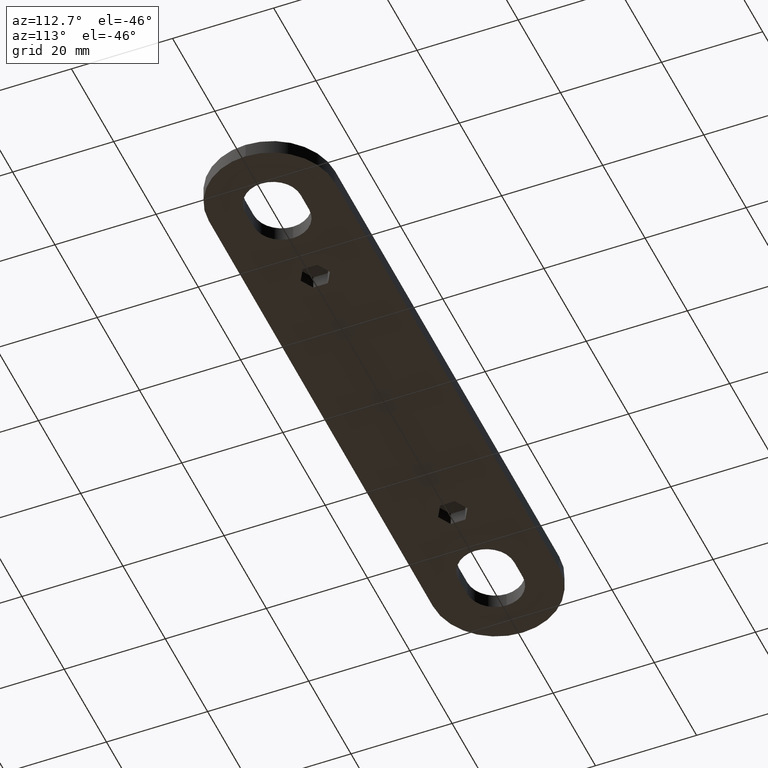
[diagram: clean part render]
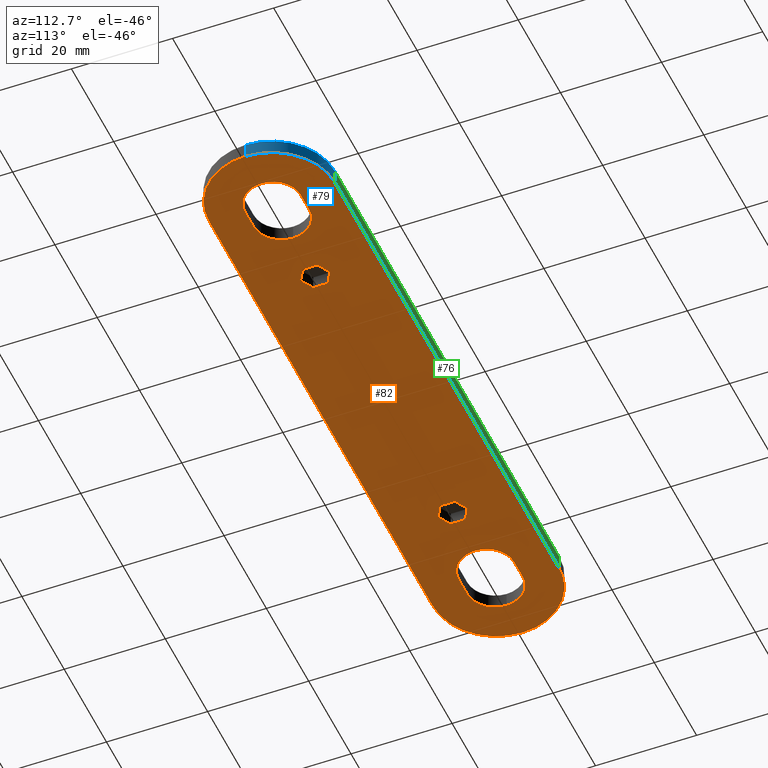
[diagram: same view with three faces highlighted in distinct colors, each labeled with its STEP entity id]
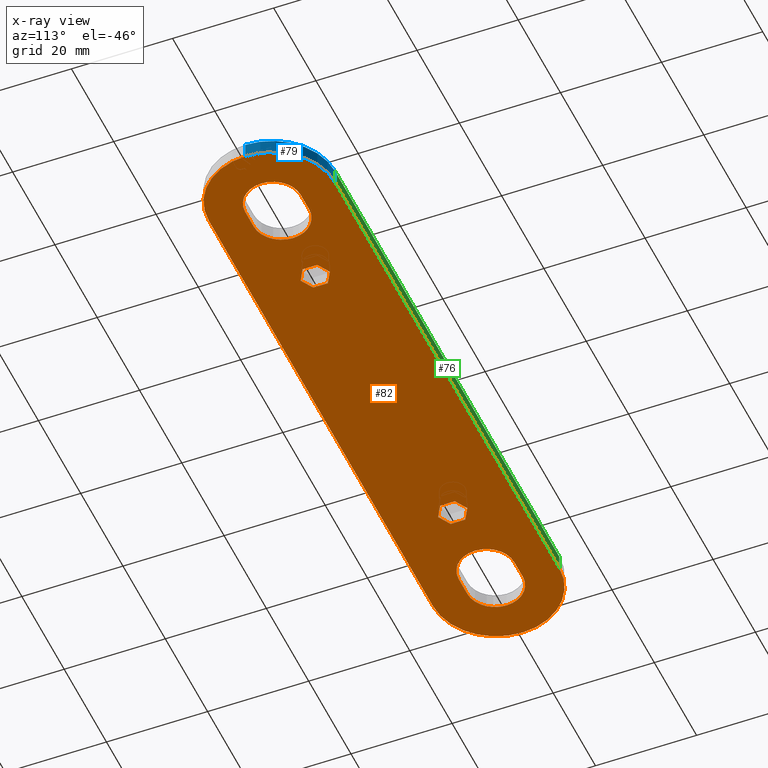
[diagram: x-ray of the same camera — body ghosted, the three highlighted faces saturated]
A machine part, auxiliary view with three faces highlighted in distinct colors.
The next image is the same camera in x-ray (body ghosted, the three faces saturated) — at least one of them is partly hidden behind the body in this view.
Their STEP definitions:

[orange] entity #82 — the highlighted planar face has unit normal (0, -0, -1).
#82 = ADVANCED_FACE( '', ( #170, #171, #172, #173, #174 ), #175, .T. );
#170 = FACE_BOUND( '', #327, .T. );
#171 = FACE_BOUND( '', #328, .T. );
#172 = FACE_BOUND( '', #329, .T. );
#173 = FACE_OUTER_BOUND( '', #330, .T. );
#174 = FACE_BOUND( '', #331, .T. );
#175 = PLANE( '', #332 );
#327 = EDGE_LOOP( '', ( #554, #555, #556, #557, #558, #559 ) );
#328 = EDGE_LOOP( '', ( #560, #561, #562, #563, #564, #565 ) );
#329 = EDGE_LOOP( '', ( #566, #567, #568, #569, #570, #571 ) );
#330 = EDGE_LOOP( '', ( #572, #573, #574, #575, #576, #577 ) );
#331 = EDGE_LOOP( '', ( #578, #579, #580, #581, #582, #583 ) );
#332 = AXIS2_PLACEMENT_3D( '', #584, #585, #586 );
#554 = ORIENTED_EDGE( '', *, *, #1092, .F. );
#555 = ORIENTED_EDGE( '', *, *, #1093, .F. );
#556 = ORIENTED_EDGE( '', *, *, #1094, .F. );
#557 = ORIENTED_EDGE( '', *, *, #1095, .F. );
#558 = ORIENTED_EDGE( '', *, *, #1096, .F. );
#559 = ORIENTED_EDGE( '', *, *, #1097, .F. );
#560 = ORIENTED_EDGE( '', *, *, #1098, .F. );
#561 = ORIENTED_EDGE( '', *, *, #1099, .F. );
#562 = ORIENTED_EDGE( '', *, *, #1100, .F. );
#563 = ORIENTED_EDGE( '', *, *, #1101, .F. );
#564 = ORIENTED_EDGE( '', *, *, #1102, .F. );
#565 = ORIENTED_EDGE( '', *, *, #1103, .F. );
#566 = ORIENTED_EDGE( '', *, *, #1104, .T. );
#567 = ORIENTED_EDGE( '', *, *, #1105, .T. );
#568 = ORIENTED_EDGE( '', *, *, #1106, .T. );
#569 = ORIENTED_EDGE( '', *, *, #1107, .T. );
#570 = ORIENTED_EDGE( '', *, *, #1108, .T. );
#571 = ORIENTED_EDGE( '', *, *, #1109, .T. );
#572 = ORIENTED_EDGE( '', *, *, #1079, .T. );
#573 = ORIENTED_EDGE( '', *, *, #1087, .T. );
#574 = ORIENTED_EDGE( '', *, *, #1089, .T. );
#575 = ORIENTED_EDGE( '', *, *, #1091, .T. );
#576 = ORIENTED_EDGE( '', *, *, #1110, .T. );
#577 = ORIENTED_EDGE( '', *, *, #1111, .T. );
#578 = ORIENTED_EDGE( '', *, *, #1112, .T. );
#579 = ORIENTED_EDGE( '', *, *, #1113, .T. );
#580 = ORIENTED_EDGE( '', *, *, #1114, .T. );
#581 = ORIENTED_EDGE( '', *, *, #1115, .T. );
#582 = ORIENTED_EDGE( '', *, *, #1116, .T. );
#583 = ORIENTED_EDGE( '', *, *, #1117, .T. );
#584 = CARTESIAN_POINT( '', ( 53.0000000000000, -8.49741356322415E-031, -1.38777878078145E-014 ) );
#585 = DIRECTION( '', ( 0.000000000000000, -6.12303176911189E-017, -1.00000000000000 ) );
#586 = DIRECTION( '', ( 6.12303176911189E-017, 1.00000000000000, -6.12303176911189E-017 ) );
#1079 = EDGE_CURVE( '', #1306, #1304, #1307, .T. );
#1087 = EDGE_CURVE( '', #1304, #1317, #1319, .T. );
#1089 = EDGE_CURVE( '', #1317, #1320, #1322, .T. );
#1091 = EDGE_CURVE( '', #1320, #1323, #1325, .T. );
#1092 = EDGE_CURVE( '', #1326, #1327, #1328, .T. );
#1093 = EDGE_CURVE( '', #1329, #1326, #1330, .T. );
#1094 = EDGE_CURVE( '', #1331, #1329, #1332, .T. );
#1095 = EDGE_CURVE( '', #1333, #1331, #1334, .T. );
#1096 = EDGE_CURVE( '', #1335, #1333, #1336, .T. );
#1097 = EDGE_CURVE( '', #1327, #1335, #1337, .T. );
#1098 = EDGE_CURVE( '', #1338, #1339, #1340, .T. );
#1099 = EDGE_CURVE( '', #1341, #1338, #1342, .T. );
#1100 = EDGE_CURVE( '', #1343, #1341, #1344, .T. );
#1101 = EDGE_CURVE( '', #1345, #1343, #1346, .T. );
#1102 = EDGE_CURVE( '', #1347, #1345, #1348, .T. );
#1103 = EDGE_CURVE( '', #1339, #1347, #1349, .T. );
#1104 = EDGE_CURVE( '', #1350, #1351, #1352, .T. );
#1105 = EDGE_CURVE( '', #1351, #1353, #1354, .T. );
#1106 = EDGE_CURVE( '', #1353, #1355, #1356, .T. );
#1107 = EDGE_CURVE( '', #1355, #1357, #1358, .T. );
#1108 = EDGE_CURVE( '', #1357, #1359, #1360, .T. );
#1109 = EDGE_CURVE( '', #1359, #1350, #1361, .T. );
#1110 = EDGE_CURVE( '', #1323, #1362, #1363, .T. );
#1111 = EDGE_CURVE( '', #1362, #1306, #1364, .T. );
#1112 = EDGE_CURVE( '', #1365, #1366, #1367, .T. );
#1113 = EDGE_CURVE( '', #1366, #1368, #1369, .T. );
#1114 = EDGE_CURVE( '', #1368, #1370, #1371, .T. );
#1115 = EDGE_CURVE( '', #1370, #1372, #1373, .T. );
#1116 = EDGE_CURVE( '', #1372, #1374, #1375, .T. );
#1117 = EDGE_CURVE( '', #1374, #1365, #1376, .T. );
#1304 = VERTEX_POINT( '', #1634 );
#1306 = VERTEX_POINT( '', #1637 );
#1307 = LINE( '', #1638, #1639 );
#1317 = VERTEX_POINT( '', #1655 );
#1319 = CIRCLE( '', #1658, 12.5000000000000 );
#1320 = VERTEX_POINT( '', #1659 );
#1322 = CIRCLE( '', #1662, 12.5000000000000 );
#1323 = VERTEX_POINT( '', #1663 );
#1325 = LINE( '', #1666, #1667 );
#1326 = VERTEX_POINT( '', #1668 );
#1327 = VERTEX_POINT( '', #1669 );
#1328 = LINE( '', #1670, #1671 );
#1329 = VERTEX_POINT( '', #1672 );
#1330 = LINE( '', #1673, #1674 );
#1331 = VERTEX_POINT( '', #1675 );
#1332 = LINE( '', #1676, #1677 );
#1333 = VERTEX_POINT( '', #1678 );
#1334 = LINE( '', #1679, #1680 );
#1335 = VERTEX_POINT( '', #1681 );
#1336 = LINE( '', #1682, #1683 );
#1337 = LINE( '', #1684, #1685 );
#1338 = VERTEX_POINT( '', #1686 );
#1339 = VERTEX_POINT( '', #1687 );
#1340 = LINE( '', #1688, #1689 );
#1341 = VERTEX_POINT( '', #1690 );
#1342 = LINE( '', #1691, #1692 );
#1343 = VERTEX_POINT( '', #1693 );
#1344 = LINE( '', #1694, #1695 );
#1345 = VERTEX_POINT( '', #1696 );
#1346 = LINE( '', #1697, #1698 );
#1347 = VERTEX_POINT( '', #1699 );
#1348 = LINE( '', #1700, #1701 );
#1349 = LINE( '', #1702, #1703 );
#1350 = VERTEX_POINT( '', #1704 );
#1351 = VERTEX_POINT( '', #1705 );
#1352 = CIRCLE( '', #1706, 5.50000000000000 );
#1353 = VERTEX_POINT( '', #1707 );
#1354 = LINE( '', #1708, #1709 );
#1355 = VERTEX_POINT( '', #1710 );
#1356 = CIRCLE( '', #1711, 5.50000000000001 );
#1357 = VERTEX_POINT( '', #1712 );
#1358 = CIRCLE( '', #1713, 5.50000000000000 );
#1359 = VERTEX_POINT( '', #1714 );
#1360 = LINE( '', #1715, #1716 );
#1361 = CIRCLE( '', #1717, 5.50000000000000 );
#1362 = VERTEX_POINT( '', #1718 );
#1363 = CIRCLE( '', #1719, 12.5000000000000 );
#1364 = CIRCLE( '', #1720, 12.5000000000000 );
#1365 = VERTEX_POINT( '', #1721 );
#1366 = VERTEX_POINT( '', #1722 );
#1367 = CIRCLE( '', #1723, 5.50000000000000 );
#1368 = VERTEX_POINT( '', #1724 );
#1369 = LINE( '', #1725, #1726 );
#1370 = VERTEX_POINT( '', #1727 );
#1371 = CIRCLE( '', #1728, 5.50000000000001 );
#1372 = VERTEX_POINT( '', #1729 );
#1373 = CIRCLE( '', #1730, 5.50000000000000 );
#1374 = VERTEX_POINT( '', #1731 );
#1375 = LINE( '', #1732, #1733 );
#1376 = CIRCLE( '', #1734, 5.50000000000000 );
#1634 = CARTESIAN_POINT( '', ( 53.0000000000000, 12.5000000000000, -1.46431667789534E-014 ) );
#1637 = CARTESIAN_POINT( '', ( -53.0000000000000, 12.5000000000000, -1.46431667789534E-014 ) );
#1638 = CARTESIAN_POINT( '', ( -53.0000000000000, 12.5000000000000, -1.46431667789534E-014 ) );
#1639 = VECTOR( '', #2031, 1000.00000000000 );
#1655 = CARTESIAN_POINT( '', ( 65.5000000000000, -8.49741356322415E-031, -1.38777878078145E-014 ) );
#1658 = AXIS2_PLACEMENT_3D( '', #2039, #2040, #2041 );
#1659 = CARTESIAN_POINT( '', ( 53.0000000000000, -12.5000000000000, -1.31124088366755E-014 ) );
#1662 = AXIS2_PLACEMENT_3D( '', #2043, #2044, #2045 );
#1663 = CARTESIAN_POINT( '', ( -53.0000000000000, -12.5000000000000, -1.31124088366755E-014 ) );
#1666 = CARTESIAN_POINT( '', ( 53.0000000000000, -12.5000000000000, -1.31124088366755E-014 ) );
#1667 = VECTOR( '', #2047, 1000.00000000000 );
#1668 = CARTESIAN_POINT( '', ( 32.5000000000000, 2.88675134594813, -1.40545445098221E-014 ) );
#1669 = CARTESIAN_POINT( '', ( 35.0000000000000, 1.44337567297408, -1.39661661588183E-014 ) );
#1670 = CARTESIAN_POINT( '', ( -13.7500000000000, 29.5892012959683, -1.56895440033931E-014 ) );
#1671 = VECTOR( '', #2048, 1000.00000000000 );
#1672 = CARTESIAN_POINT( '', ( 30.0000000000000, 1.44337567297406, -1.39661661588183E-014 ) );
#1673 = CARTESIAN_POINT( '', ( -15.0000000000000, -24.5373864405591, -1.23753558407493E-014 ) );
#1674 = VECTOR( '', #2049, 1000.00000000000 );
#1675 = CARTESIAN_POINT( '', ( 30.0000000000000, -1.44337567297407, -1.37894094568106E-014 ) );
#1676 = CARTESIAN_POINT( '', ( 30.0000000000000, 1.44337567297407, -1.39661661588183E-014 ) );
#1677 = VECTOR( '', #2050, 1000.00000000000 );
#1678 = CARTESIAN_POINT( '', ( 32.5000000000000, -2.88675134594813, -1.37010311058068E-014 ) );
#1679 = CARTESIAN_POINT( '', ( -16.2500000000000, 25.2590742770461, -1.54244089503816E-014 ) );
#1680 = VECTOR( '', #2051, 1000.00000000000 );
#1681 = CARTESIAN_POINT( '', ( 35.0000000000000, -1.44337567297406, -1.37894094568106E-014 ) );
#1682 = CARTESIAN_POINT( '', ( -12.5000000000000, -28.8675134594813, -1.21102207877378E-014 ) );
#1683 = VECTOR( '', #2052, 1000.00000000000 );
#1684 = CARTESIAN_POINT( '', ( 35.0000000000000, 1.44337567297411, -1.39661661588183E-014 ) );
#1685 = VECTOR( '', #2053, 1000.00000000000 );
#1686 = CARTESIAN_POINT( '', ( -32.5000000000000, 2.88675134594813, -1.40545445098221E-014 ) );
#1687 = CARTESIAN_POINT( '', ( -30.0000000000000, 1.44337567297407, -1.39661661588183E-014 ) );
#1688 = CARTESIAN_POINT( '', ( -30.0000000000000, 1.44337567297407, -1.39661661588183E-014 ) );
#1689 = VECTOR( '', #2054, 1000.00000000000 );
#1690 = CARTESIAN_POINT( '', ( -35.0000000000000, 1.44337567297406, -1.39661661588183E-014 ) );
#1691 = CARTESIAN_POINT( '', ( -31.2500000000000, 3.60843918243516, -1.40987336853240E-014 ) );
#1692 = VECTOR( '', #2055, 1000.00000000000 );
#1693 = CARTESIAN_POINT( '', ( -35.0000000000000, -1.44337567297407, -1.37894094568106E-014 ) );
#1694 = CARTESIAN_POINT( '', ( -35.0000000000000, 1.44337567297407, -1.39661661588183E-014 ) );
#1695 = VECTOR( '', #2056, 1000.00000000000 );
#1696 = CARTESIAN_POINT( '', ( -32.5000000000000, -2.88675134594813, -1.37010311058068E-014 ) );
#1697 = CARTESIAN_POINT( '', ( -32.5000000000000, -2.88675134594813, -1.37010311058068E-014 ) );
#1698 = VECTOR( '', #2057, 1000.00000000000 );
#1699 = CARTESIAN_POINT( '', ( -30.0000000000000, -1.44337567297406, -1.37894094568106E-014 ) );
#1700 = CARTESIAN_POINT( '', ( -28.7500000000000, -0.721687836487026, -1.38335986323125E-014 ) );
#1701 = VECTOR( '', #2058, 1000.00000000000 );
#1702 = CARTESIAN_POINT( '', ( -30.0000000000000, 1.44337567297407, -1.39661661588183E-014 ) );
#1703 = VECTOR( '', #2059, 1000.00000000000 );
#1704 = CARTESIAN_POINT( '', ( -43.0000000000000, -2.60208582626839E-015, -1.00000000086142E-005 ) );
#1705 = CARTESIAN_POINT( '', ( -48.5000000000000, 5.50000000000000, -1.00000000089510E-005 ) );
#1706 = AXIS2_PLACEMENT_3D( '', #2060, #2061, #2062 );
#1707 = CARTESIAN_POINT( '', ( -52.5000000000000, 5.50000000000000, -1.00000000089510E-005 ) );
#1708 = CARTESIAN_POINT( '', ( -48.5000000000000, 5.50000000000000, -1.00000000089510E-005 ) );
#1709 = VECTOR( '', #2063, 1000.00000000000 );
#1710 = CARTESIAN_POINT( '', ( -58.0000000000000, -5.20417104023360E-015, -1.00000000086142E-005 ) );
#1711 = AXIS2_PLACEMENT_3D( '', #2064, #2065, #2066 );
#1712 = CARTESIAN_POINT( '', ( -52.5000000000000, -5.50000000000001, -1.00000000082775E-005 ) );
#1713 = AXIS2_PLACEMENT_3D( '', #2067, #2068, #2069 );
#1714 = CARTESIAN_POINT( '', ( -48.5000000000000, -5.50000000000001, -1.00000000082775E-005 ) );
#1715 = CARTESIAN_POINT( '', ( -52.5000000000000, -5.50000000000001, -1.00000000082775E-005 ) );
#1716 = VECTOR( '', #2070, 1000.00000000000 );
#1717 = AXIS2_PLACEMENT_3D( '', #2071, #2072, #2073 );
#1718 = CARTESIAN_POINT( '', ( -65.5000000000000, -1.73472347597681E-015, -1.38777878078145E-014 ) );
#1719 = AXIS2_PLACEMENT_3D( '', #2074, #2075, #2076 );
#1720 = AXIS2_PLACEMENT_3D( '', #2077, #2078, #2079 );
#1721 = CARTESIAN_POINT( '', ( 58.0000000000000, 3.46944633965044E-015, -1.00000000086142E-005 ) );
#1722 = CARTESIAN_POINT( '', ( 52.5000000000000, 5.50000000000000, -1.00000000089510E-005 ) );
#1723 = AXIS2_PLACEMENT_3D( '', #2080, #2081, #2082 );
#1724 = CARTESIAN_POINT( '', ( 48.5000000000000, 5.50000000000001, -1.00000000089510E-005 ) );
#1725 = CARTESIAN_POINT( '', ( 52.5000000000000, 5.50000000000000, -1.00000000089510E-005 ) );
#1726 = VECTOR( '', #2083, 1000.00000000000 );
#1727 = CARTESIAN_POINT( '', ( 43.0000000000000, 8.67361125685226E-016, -1.00000000086142E-005 ) );
#1728 = AXIS2_PLACEMENT_3D( '', #2084, #2085, #2086 );
#1729 = CARTESIAN_POINT( '', ( 48.5000000000000, -5.50000000000000, -1.00000000082775E-005 ) );
#1730 = AXIS2_PLACEMENT_3D( '', #2087, #2088, #2089 );
#1731 = CARTESIAN_POINT( '', ( 52.5000000000000, -5.50000000000000, -1.00000000082775E-005 ) );
#1732 = CARTESIAN_POINT( '', ( 48.5000000000000, -5.50000000000000, -1.00000000082775E-005 ) );
#1733 = VECTOR( '', #2090, 1000.00000000000 );
#1734 = AXIS2_PLACEMENT_3D( '', #2091, #2092, #2093 );
#2031 = DIRECTION( '', ( 1.00000000000000, 0.000000000000000, 0.000000000000000 ) );
#2039 = CARTESIAN_POINT( '', ( 53.0000000000000, -8.49741356322415E-031, -1.38777878078145E-014 ) );
#2040 = DIRECTION( '', ( 5.60519385729927E-049, -6.12303176911189E-017, -1.00000000000000 ) );
#2041 = DIRECTION( '', ( 6.12303176911189E-017, 1.00000000000000, -6.12303176911189E-017 ) );
#2043 = CARTESIAN_POINT( '', ( 53.0000000000000, -8.49741356322415E-031, -1.38777878078145E-014 ) );
#2044 = DIRECTION( '', ( 5.60519385729927E-049, -6.12303176911189E-017, -1.00000000000000 ) );
#2045 = DIRECTION( '', ( 6.12303176911189E-017, 1.00000000000000, -6.12303176911189E-017 ) );
#2047 = DIRECTION( '', ( -1.00000000000000, 0.000000000000000, 0.000000000000000 ) );
#2048 = DIRECTION( '', ( 0.866025403784439, -0.500000000000000, 3.06151588455594E-017 ) );
#2049 = DIRECTION( '', ( 0.866025403784439, 0.500000000000000, -3.06151588455594E-017 ) );
#2050 = DIRECTION( '', ( 1.11022302462516E-016, 1.00000000000000, -6.12303176911189E-017 ) );
#2051 = DIRECTION( '', ( -0.866025403784439, 0.500000000000000, -3.06151588455594E-017 ) );
#2052 = DIRECTION( '', ( -0.866025403784439, -0.500000000000000, 3.06151588455594E-017 ) );
#2053 = DIRECTION( '', ( 4.99600361081321E-016, -1.00000000000000, 6.12303176911189E-017 ) );
#2054 = DIRECTION( '', ( 0.866025403784439, -0.500000000000000, 3.06151588455594E-017 ) );
#2055 = DIRECTION( '', ( 0.866025403784439, 0.500000000000000, -3.06151588455594E-017 ) );
#2056 = DIRECTION( '', ( 1.11022302462516E-016, 1.00000000000000, -6.12303176911189E-017 ) );
#2057 = DIRECTION( '', ( -0.866025403784439, 0.500000000000000, -3.06151588455594E-017 ) );
#2058 = DIRECTION( '', ( -0.866025403784439, -0.500000000000000, 3.06151588455594E-017 ) );
#2059 = DIRECTION( '', ( 4.99600361081321E-016, -1.00000000000000, 6.12303176911189E-017 ) );
#2060 = CARTESIAN_POINT( '', ( -48.5000000000000, -2.60208582626839E-015, -1.00000000086142E-005 ) );
#2061 = DIRECTION( '', ( 2.89524476100169E-048, 6.12303176911189E-017, 1.00000000000000 ) );
#2062 = DIRECTION( '', ( 1.83690953073357E-016, 1.00000000000000, -6.12303176911189E-017 ) );
#2063 = DIRECTION( '', ( -1.00000000000000, -1.15648231731787E-016, 7.08117796935346E-033 ) );
#2064 = CARTESIAN_POINT( '', ( -52.5000000000000, -5.20417104023360E-015, -1.00000000086142E-005 ) );
#2065 = DIRECTION( '', ( -3.61905595125210E-049, 6.12303176911189E-017, 1.00000000000000 ) );
#2066 = DIRECTION( '', ( -1.00000000000000, 2.59888188936470E-017, -1.59130363727496E-033 ) );
#2067 = CARTESIAN_POINT( '', ( -52.5000000000000, -6.07153277822200E-015, -1.00000000086142E-005 ) );
#2068 = DIRECTION( '', ( 0.000000000000000, 6.12303176911189E-017, 1.00000000000000 ) );
#2069 = DIRECTION( '', ( -1.83690953073357E-016, -1.00000000000000, 6.12303176911189E-017 ) );
#2070 = DIRECTION( '', ( 1.00000000000000, 1.15648231731787E-016, -7.08117796935346E-033 ) );
#2071 = CARTESIAN_POINT( '', ( -48.5000000000000, -3.46944756425679E-015, -1.00000000086142E-005 ) );
#2072 = DIRECTION( '', ( 1.44762238050085E-048, 6.12303176911189E-017, 1.00000000000000 ) );
#2073 = DIRECTION( '', ( 1.00000000000000, 1.31713315286063E-016, -8.06484813911614E-033 ) );
#2074 = CARTESIAN_POINT( '', ( -53.0000000000000, -8.49741356322415E-031, -1.38777878078145E-014 ) );
#2075 = DIRECTION( '', ( 5.60519385729927E-049, -6.12303176911189E-017, -1.00000000000000 ) );
#2076 = DIRECTION( '', ( 6.12303176911189E-017, 1.00000000000000, -6.12303176911189E-017 ) );
#2077 = CARTESIAN_POINT( '', ( -53.0000000000000, -8.49741356322415E-031, -1.38777878078145E-014 ) );
#2078 = DIRECTION( '', ( 5.60519385729927E-049, -6.12303176911189E-017, -1.00000000000000 ) );
#2079 = DIRECTION( '', ( 6.12303176911189E-017, 1.00000000000000, -6.12303176911189E-017 ) );
#2080 = CARTESIAN_POINT( '', ( 52.5000000000000, 4.33680807763884E-015, -1.00000000086142E-005 ) );
#2081 = DIRECTION( '', ( 0.000000000000000, 6.12303176911189E-017, 1.00000000000000 ) );
#2082 = DIRECTION( '', ( 2.59888188936470E-017, 1.00000000000000, -6.12303176911189E-017 ) );
#2083 = DIRECTION( '', ( -1.00000000000000, -5.78241158658935E-017, 3.54058898467673E-033 ) );
#2084 = CARTESIAN_POINT( '', ( 48.5000000000000, 1.73472286367363E-015, -1.00000000086142E-005 ) );
#2085 = DIRECTION( '', ( 0.000000000000000, 6.12303176911189E-017, 1.00000000000000 ) );
#2086 = DIRECTION( '', ( -1.00000000000000, -1.31713315286063E-016, 8.06484813911612E-033 ) );
#2087 = CARTESIAN_POINT( '', ( 48.5000000000000, 8.67361125685226E-016, -1.00000000086142E-005 ) );
#2088 = DIRECTION( '', ( -1.80952797562606E-049, 6.12303176911189E-017, 1.00000000000000 ) );
#2089 = DIRECTION( '', ( -2.59888188936470E-017, -1.00000000000000, 6.12303176911189E-017 ) );
#2090 = DIRECTION( '', ( 1.00000000000000, 5.78241158658935E-017, -3.54058898467673E-033 ) );
#2091 = CARTESIAN_POINT( '', ( 52.5000000000000, 3.46944633965044E-015, -1.00000000086142E-005 ) );
#2092 = DIRECTION( '', ( -1.80952797562606E-049, 6.12303176911189E-017, 1.00000000000000 ) );
#2093 = DIRECTION( '', ( 1.00000000000000, -2.59888188936470E-017, 1.59130363727496E-033 ) );

[blue] entity #79 — the highlighted cylindrical surface (partial cylindrical patch) has radius 12.5 mm, axis along (0, -0, -1).
#79 = ADVANCED_FACE( '', ( #164 ), #165, .T. );
#164 = FACE_OUTER_BOUND( '', #321, .T. );
#165 = CYLINDRICAL_SURFACE( '', #322, 12.5000000000000 );
#321 = EDGE_LOOP( '', ( #533, #534, #535, #536 ) );
#322 = AXIS2_PLACEMENT_3D( '', #537, #538, #539 );
#533 = ORIENTED_EDGE( '', *, *, #1053, .T. );
#534 = ORIENTED_EDGE( '', *, *, #1086, .F. );
#535 = ORIENTED_EDGE( '', *, *, #1087, .F. );
#536 = ORIENTED_EDGE( '', *, *, #1078, .T. );
#537 = CARTESIAN_POINT( '', ( 53.0000000000000, -8.49741356322415E-031, -1.38777878078145E-014 ) );
#538 = DIRECTION( '', ( 5.60519385729927E-049, -6.12303176911189E-017, -1.00000000000000 ) );
#539 = DIRECTION( '', ( -6.12303176911189E-017, -1.00000000000000, 6.12303176911189E-017 ) );
#1053 = EDGE_CURVE( '', #1245, #1253, #1255, .T. );
#1078 = EDGE_CURVE( '', #1304, #1245, #1305, .T. );
#1086 = EDGE_CURVE( '', #1317, #1253, #1318, .T. );
#1087 = EDGE_CURVE( '', #1304, #1317, #1319, .T. );
#1245 = VERTEX_POINT( '', #1556 );
#1253 = VERTEX_POINT( '', #1566 );
#1255 = CIRCLE( '', #1568, 12.5000000000000 );
#1304 = VERTEX_POINT( '', #1634 );
#1305 = LINE( '', #1635, #1636 );
#1317 = VERTEX_POINT( '', #1655 );
#1318 = LINE( '', #1656, #1657 );
#1319 = CIRCLE( '', #1658, 12.5000000000000 );
#1556 = CARTESIAN_POINT( '', ( 53.0000000000000, 12.5000000000000, 2.99999999999999 ) );
#1566 = CARTESIAN_POINT( '', ( 65.5000000000000, 1.83690953073356E-016, 2.99999999999999 ) );
#1568 = AXIS2_PLACEMENT_3D( '', #1989, #1990, #1991 );
#1634 = CARTESIAN_POINT( '', ( 53.0000000000000, 12.5000000000000, -1.46431667789534E-014 ) );
#1635 = CARTESIAN_POINT( '', ( 53.0000000000000, 12.5000000000000, -1.46431667789534E-014 ) );
#1636 = VECTOR( '', #2030, 1000.00000000000 );
#1655 = CARTESIAN_POINT( '', ( 65.5000000000000, -8.49741356322415E-031, -1.38777878078145E-014 ) );
#1656 = CARTESIAN_POINT( '', ( 65.5000000000000, -8.49741356322415E-031, -1.38777878078145E-014 ) );
#1657 = VECTOR( '', #2038, 1000.00000000000 );
#1658 = AXIS2_PLACEMENT_3D( '', #2039, #2040, #2041 );
#1989 = CARTESIAN_POINT( '', ( 53.0000000000000, 1.83690953073356E-016, 2.99999999999999 ) );
#1990 = DIRECTION( '', ( 5.60519385729927E-049, -6.12303176911189E-017, -1.00000000000000 ) );
#1991 = DIRECTION( '', ( 6.12303176911189E-017, 1.00000000000000, -6.12303176911189E-017 ) );
#2030 = DIRECTION( '', ( 0.000000000000000, 6.12303176911189E-017, 1.00000000000000 ) );
#2038 = DIRECTION( '', ( 0.000000000000000, 6.12303176911189E-017, 1.00000000000000 ) );
#2039 = CARTESIAN_POINT( '', ( 53.0000000000000, -8.49741356322415E-031, -1.38777878078145E-014 ) );
#2040 = DIRECTION( '', ( 5.60519385729927E-049, -6.12303176911189E-017, -1.00000000000000 ) );
#2041 = DIRECTION( '', ( 6.12303176911189E-017, 1.00000000000000, -6.12303176911189E-017 ) );

[green] entity #76 — the highlighted planar face has unit normal (0, -1, 0).
#76 = ADVANCED_FACE( '', ( #158 ), #159, .F. );
#158 = FACE_OUTER_BOUND( '', #315, .T. );
#159 = PLANE( '', #316 );
#315 = EDGE_LOOP( '', ( #512, #513, #514, #515 ) );
#316 = AXIS2_PLACEMENT_3D( '', #516, #517, #518 );
#512 = ORIENTED_EDGE( '', *, *, #1048, .T. );
#513 = ORIENTED_EDGE( '', *, *, #1078, .F. );
#514 = ORIENTED_EDGE( '', *, *, #1079, .F. );
#515 = ORIENTED_EDGE( '', *, *, #1080, .T. );
#516 = CARTESIAN_POINT( '', ( -53.0000000000000, 12.5000000000000, -1.46431667789534E-014 ) );
#517 = DIRECTION( '', ( 0.000000000000000, -1.00000000000000, 6.12303176911189E-017 ) );
#518 = DIRECTION( '', ( -1.00000000000000, 0.000000000000000, 0.000000000000000 ) );
#1048 = EDGE_CURVE( '', #1244, #1245, #1246, .T. );
#1078 = EDGE_CURVE( '', #1304, #1245, #1305, .T. );
#1079 = EDGE_CURVE( '', #1306, #1304, #1307, .T. );
#1080 = EDGE_CURVE( '', #1306, #1244, #1308, .T. );
#1244 = VERTEX_POINT( '', #1555 );
#1245 = VERTEX_POINT( '', #1556 );
#1246 = LINE( '', #1557, #1558 );
#1304 = VERTEX_POINT( '', #1634 );
#1305 = LINE( '', #1635, #1636 );
#1306 = VERTEX_POINT( '', #1637 );
#1307 = LINE( '', #1638, #1639 );
#1308 = LINE( '', #1640, #1641 );
#1555 = CARTESIAN_POINT( '', ( -53.0000000000000, 12.5000000000000, 2.99999999999999 ) );
#1556 = CARTESIAN_POINT( '', ( 53.0000000000000, 12.5000000000000, 2.99999999999999 ) );
#1557 = CARTESIAN_POINT( '', ( -53.0000000000000, 12.5000000000000, 2.99999999999999 ) );
#1558 = VECTOR( '', #1978, 1000.00000000000 );
#1634 = CARTESIAN_POINT( '', ( 53.0000000000000, 12.5000000000000, -1.46431667789534E-014 ) );
#1635 = CARTESIAN_POINT( '', ( 53.0000000000000, 12.5000000000000, -1.46431667789534E-014 ) );
#1636 = VECTOR( '', #2030, 1000.00000000000 );
#1637 = CARTESIAN_POINT( '', ( -53.0000000000000, 12.5000000000000, -1.46431667789534E-014 ) );
#1638 = CARTESIAN_POINT( '', ( -53.0000000000000, 12.5000000000000, -1.46431667789534E-014 ) );
#1639 = VECTOR( '', #2031, 1000.00000000000 );
#1640 = CARTESIAN_POINT( '', ( -53.0000000000000, 12.5000000000000, -1.46431667789534E-014 ) );
#1641 = VECTOR( '', #2032, 1000.00000000000 );
#1978 = DIRECTION( '', ( 1.00000000000000, 0.000000000000000, 0.000000000000000 ) );
#2030 = DIRECTION( '', ( 0.000000000000000, 6.12303176911189E-017, 1.00000000000000 ) );
#2031 = DIRECTION( '', ( 1.00000000000000, 0.000000000000000, 0.000000000000000 ) );
#2032 = DIRECTION( '', ( 0.000000000000000, 6.12303176911189E-017, 1.00000000000000 ) );